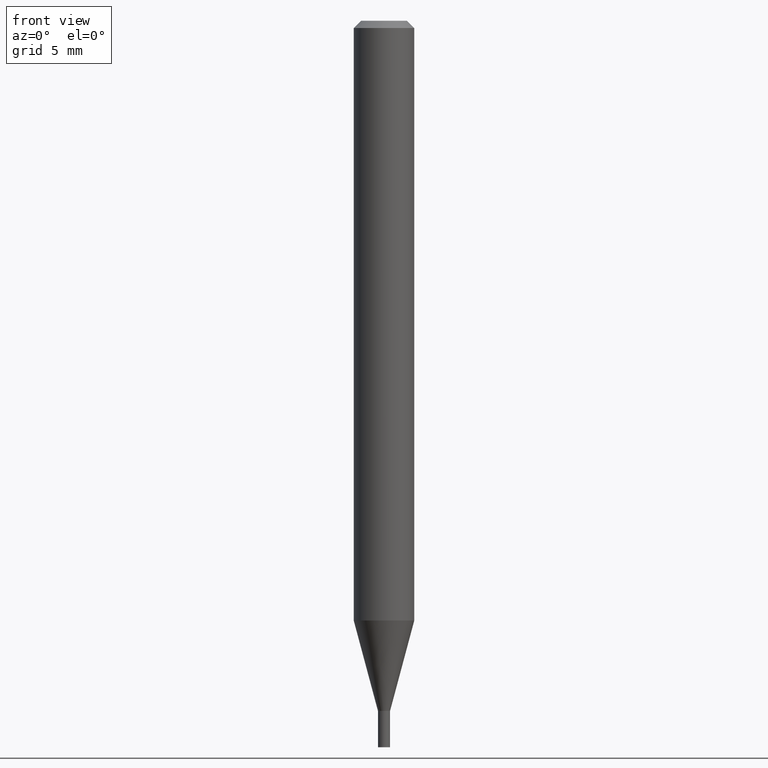
[diagram: clean part render]
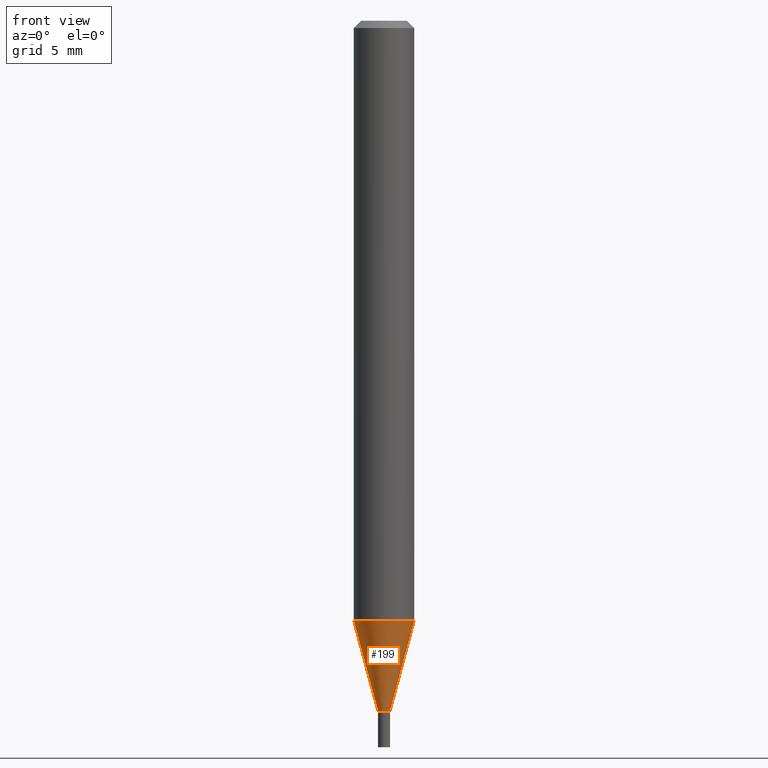
[diagram: same view with one face highlighted and labeled with its STEP entity id]
A machine part, front view. The second image highlights one B-rep face of the part: STEP entity #199.
In plain terms, the highlighted conical surface has half-angle 15 deg.
Its self-contained STEP definition (entity closure, byte-faithful):
#29 = CARTESIAN_POINT ( 'NONE',  ( -0.01249999999999965375, -4.886543065881473334E-15, -1.425000000000000266 ) ) ;
#51 = ORIENTED_EDGE ( 'NONE', *, *, #462, .T. ) ;
#58 = CARTESIAN_POINT ( 'NONE',  ( 0.01249999999999965375, -5.062647941322559142E-15, -1.425000000000000266 ) ) ;
#60 = LINE ( 'NONE', #214, #437 ) ;
#69 = LINE ( 'NONE', #29, #331 ) ;
#85 = VERTEX_POINT ( 'NONE', #250 ) ;
#107 = DIRECTION ( 'NONE',  ( 1.000000000000000000, -6.982962677686270655E-15, 0.000000000000000000 ) ) ;
#110 = CARTESIAN_POINT ( 'NONE',  ( 0.06250000000000000000, -4.760276787694811076E-15, -1.238397459621555452 ) ) ;
#113 = AXIS2_PLACEMENT_3D ( 'NONE', #182, #219, #107 ) ;
#129 = DIRECTION ( 'NONE',  ( 1.000000000000000000, -6.982962677686254089E-15, 0.000000000000000000 ) ) ;
#136 = DIRECTION ( 'NONE',  ( 1.000000000000000000, -6.982962677686254089E-15, 0.000000000000000000 ) ) ;
#138 = VERTEX_POINT ( 'NONE', #110 ) ;
#161 = CONICAL_SURFACE ( 'NONE', #413, 0.01249999999999965375, 0.2617993877991500740 ) ;
#169 = CIRCLE ( 'NONE', #113, 0.06250000000000000000 ) ;
#182 = CARTESIAN_POINT ( 'NONE',  ( 3.028462357163431359E-29, -4.323841620339419407E-15, -1.238397459621555452 ) ) ;
#199 = ADVANCED_FACE ( 'NONE', ( #202 ), #161, .T. ) ;
#202 = FACE_OUTER_BOUND ( 'NONE', #442, .T. ) ;
#209 = ORIENTED_EDGE ( 'NONE', *, *, #418, .T. ) ;
#214 = CARTESIAN_POINT ( 'NONE',  ( 0.01249999999999965375, -5.062647941322559142E-15, -1.425000000000000266 ) ) ;
#219 = DIRECTION ( 'NONE',  ( -2.445468806185136597E-29, 3.491481338843145583E-15, 1.000000000000000000 ) ) ;
#250 = CARTESIAN_POINT ( 'NONE',  ( -0.01249999999999965375, -4.383147738185414668E-15, -1.425000000000000266 ) ) ;
#262 = CIRCLE ( 'NONE', #367, 0.01249999999999965375 ) ;
#319 = VERTEX_POINT ( 'NONE', #58 ) ;
#325 = EDGE_CURVE ( 'NONE', #85, #421, #69, .T. ) ;
#331 = VECTOR ( 'NONE', #428, 39.37007874015747433 ) ;
#346 = DIRECTION ( 'NONE',  ( -2.445468806185136597E-29, 3.491481338843145583E-15, 1.000000000000000000 ) ) ;
#354 = CARTESIAN_POINT ( 'NONE',  ( 3.484793048813820547E-29, -4.975360907851483175E-15, -1.425000000000000266 ) ) ;
#356 = DIRECTION ( 'NONE',  ( 0.2588190451025213501, 1.565188264969621968E-15, 0.9659258262890682012 ) ) ;
#367 = AXIS2_PLACEMENT_3D ( 'NONE', #354, #454, #136 ) ;
#388 = ORIENTED_EDGE ( 'NONE', *, *, #431, .F. ) ;
#413 = AXIS2_PLACEMENT_3D ( 'NONE', #417, #346, #129 ) ;
#417 = CARTESIAN_POINT ( 'NONE',  ( 3.484793048813820547E-29, -4.975360907851483175E-15, -1.425000000000000266 ) ) ;
#418 = EDGE_CURVE ( 'NONE', #85, #319, #262, .T. ) ;
#421 = VERTEX_POINT ( 'NONE', #463 ) ;
#428 = DIRECTION ( 'NONE',  ( -0.2588190451025213501, 5.211531920934551042E-15, 0.9659258262890682012 ) ) ;
#431 = EDGE_CURVE ( 'NONE', #421, #138, #169, .T. ) ;
#437 = VECTOR ( 'NONE', #356, 39.37007874015747433 ) ;
#442 = EDGE_LOOP ( 'NONE', ( #453, #209, #51, #388 ) ) ;
#453 = ORIENTED_EDGE ( 'NONE', *, *, #325, .F. ) ;
#454 = DIRECTION ( 'NONE',  ( -2.445468806185136597E-29, 3.491481338843145583E-15, 1.000000000000000000 ) ) ;
#462 = EDGE_CURVE ( 'NONE', #319, #138, #60, .T. ) ;
#463 = CARTESIAN_POINT ( 'NONE',  ( -0.06250000000000000000, -3.879752410489356791E-15, -1.238397459621555452 ) ) ;